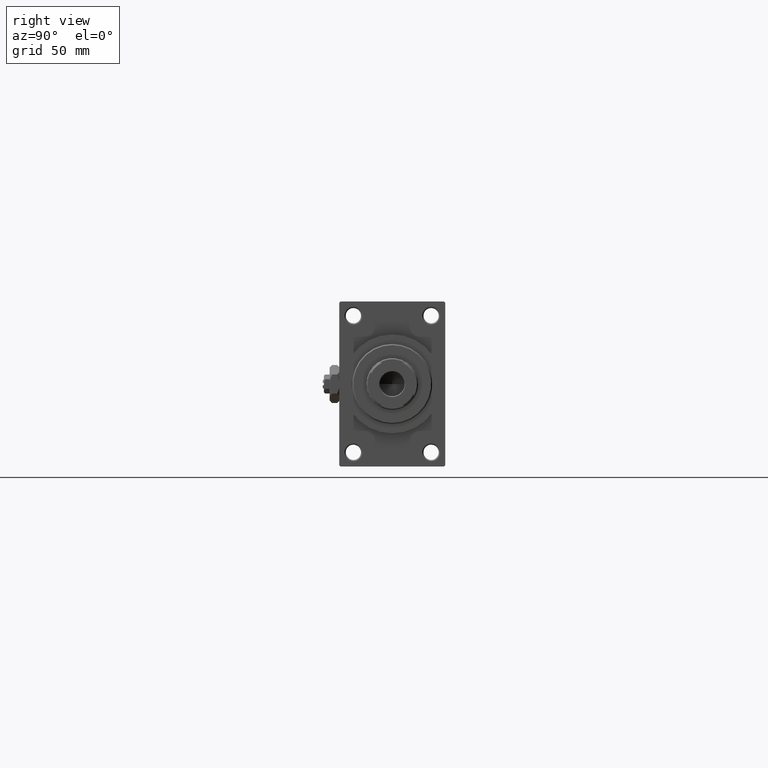
[diagram: clean part render]
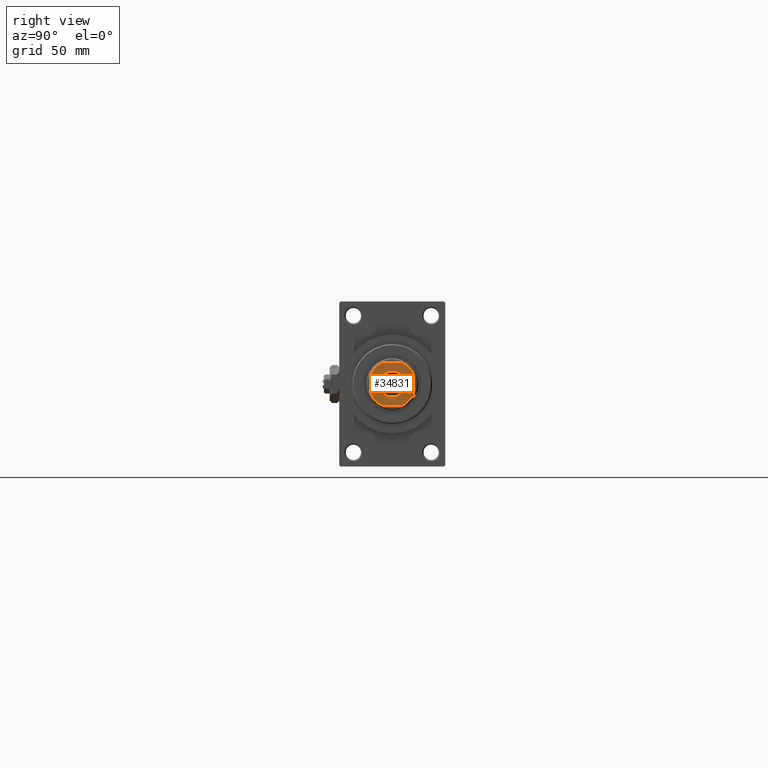
[diagram: same view with one face highlighted and labeled with its STEP entity id]
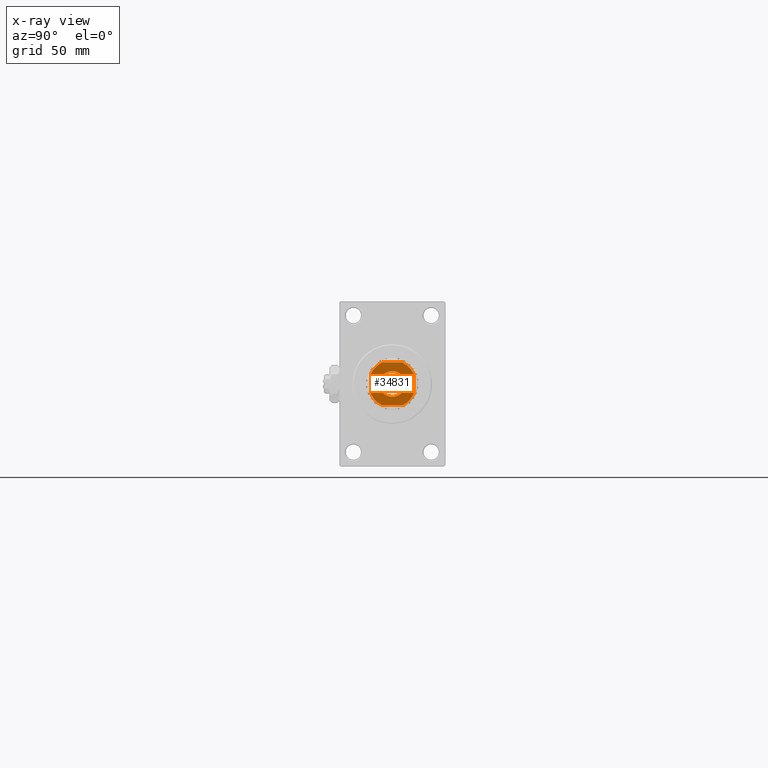
[diagram: x-ray of the same camera — body ghosted, the highlighted face saturated]
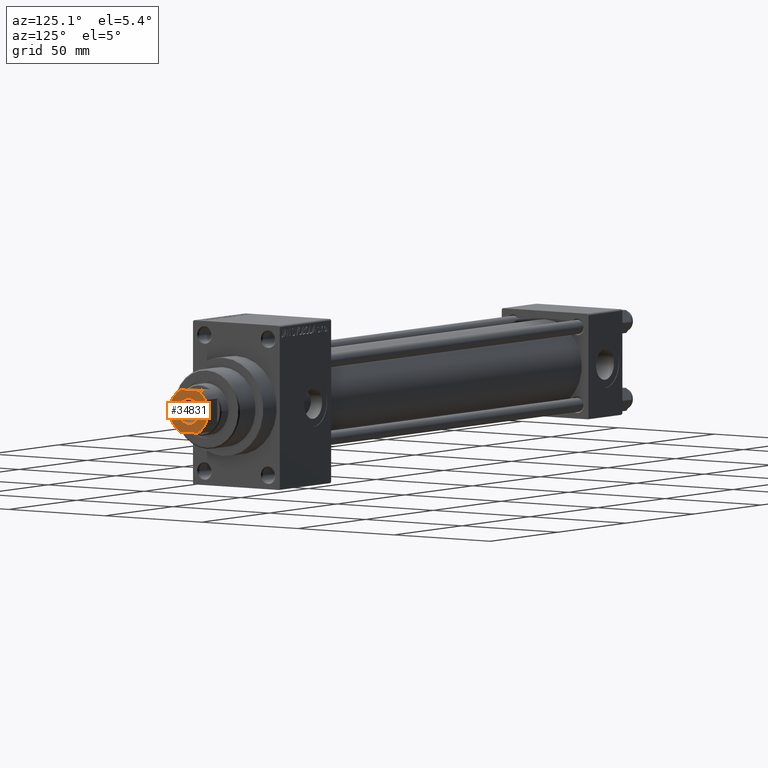
[diagram: same view with one face highlighted and labeled with its STEP entity id]
A machine part, right view. The second image highlights one B-rep face of the part: STEP entity #34831.
The next image is the same camera in x-ray: the body ghosted, the highlighted face saturated — about 0% of this face is hidden behind the body in this view.
A second angle (auxiliary view) of the same face is appended — the face is thin or edge-on in the first view.
In plain terms, the highlighted planar face has unit normal (1, 0, 0).
Its self-contained STEP definition (entity closure, byte-faithful):
#186 = LINE ( 'NONE', #30482, #36248 ) ;
#1697 = ORIENTED_EDGE ( 'NONE', *, *, #37281, .T. ) ;
#2948 = ORIENTED_EDGE ( 'NONE', *, *, #20593, .T. ) ;
#3839 = CARTESIAN_POINT ( 'NONE',  ( 0.000000000000000000, 0.000000000000000000, 263.0000000000000000 ) ) ;
#4938 = EDGE_CURVE ( 'NONE', #21318, #39023, #42260, .T. ) ;
#6105 = DIRECTION ( 'NONE',  ( 1.000000000000000000, 0.000000000000000000, 0.000000000000000000 ) ) ;
#6182 = DIRECTION ( 'NONE',  ( -0.000000000000000000, 0.000000000000000000, 1.000000000000000000 ) ) ;
#6431 = PLANE ( 'NONE',  #43890 ) ;
#6568 = DIRECTION ( 'NONE',  ( 0.000000000000000000, -0.000000000000000000, -1.000000000000000000 ) ) ;
#7846 = CARTESIAN_POINT ( 'NONE',  ( 4.358898943540551407, 8.999999999999998224, 263.0000000000000000 ) ) ;
#9156 = ORIENTED_EDGE ( 'NONE', *, *, #41198, .T. ) ;
#9356 = DIRECTION ( 'NONE',  ( 1.000000000000000000, 0.000000000000000000, 0.000000000000000000 ) ) ;
#9883 = DIRECTION ( 'NONE',  ( 9.637352644315595243E-17, -1.000000000000000000, 0.000000000000000000 ) ) ;
#10516 = AXIS2_PLACEMENT_3D ( 'NONE', #36185, #13087, #9356 ) ;
#11749 = CARTESIAN_POINT ( 'NONE',  ( 0.000000000000000000, 0.000000000000000000, 263.0000000000000000 ) ) ;
#13073 = CARTESIAN_POINT ( 'NONE',  ( 0.000000000000000000, 0.000000000000000000, 263.0000000000000000 ) ) ;
#13087 = DIRECTION ( 'NONE',  ( 0.000000000000000000, -0.000000000000000000, -1.000000000000000000 ) ) ;
#13636 = VERTEX_POINT ( 'NONE', #17674 ) ;
#14027 = ORIENTED_EDGE ( 'NONE', *, *, #4938, .T. ) ;
#14053 = DIRECTION ( 'NONE',  ( -0.000000000000000000, 0.000000000000000000, 1.000000000000000000 ) ) ;
#15474 = VECTOR ( 'NONE', #9883, 1000.000000000000000 ) ;
#15763 = CIRCLE ( 'NONE', #22089, 10.00000000000000355 ) ;
#16002 = ORIENTED_EDGE ( 'NONE', *, *, #45364, .T. ) ;
#16240 = ORIENTED_EDGE ( 'NONE', *, *, #18542, .T. ) ;
#16668 = EDGE_CURVE ( 'NONE', #35530, #27789, #33436, .T. ) ;
#17418 = ORIENTED_EDGE ( 'NONE', *, *, #42006, .T. ) ;
#17494 = CARTESIAN_POINT ( 'NONE',  ( 5.550000000000027356, 0.000000000000000000, 263.0000000000000000 ) ) ;
#17674 = CARTESIAN_POINT ( 'NONE',  ( 8.999999999999998224, 4.358898943540553184, 263.0000000000000000 ) ) ;
#17823 = LINE ( 'NONE', #37461, #15474 ) ;
#18091 = FACE_BOUND ( 'NONE', #24017, .T. ) ;
#18542 = EDGE_CURVE ( 'NONE', #45043, #13636, #186, .T. ) ;
#19477 = ORIENTED_EDGE ( 'NONE', *, *, #16668, .T. ) ;
#19653 = VECTOR ( 'NONE', #29132, 1000.000000000000000 ) ;
#20593 = EDGE_CURVE ( 'NONE', #47168, #28707, #44501, .T. ) ;
#21318 = VERTEX_POINT ( 'NONE', #17494 ) ;
#22089 = AXIS2_PLACEMENT_3D ( 'NONE', #25229, #47569, #43357 ) ;
#22991 = EDGE_LOOP ( 'NONE', ( #16240, #1697, #2948, #16002, #9156, #44614, #19477, #17418 ) ) ;
#23655 = EDGE_CURVE ( 'NONE', #28899, #35530, #15763, .T. ) ;
#24017 = EDGE_LOOP ( 'NONE', ( #14027, #27934 ) ) ;
#25012 = CARTESIAN_POINT ( 'NONE',  ( 0.000000000000000000, 0.000000000000000000, 263.0000000000000000 ) ) ;
#25229 = CARTESIAN_POINT ( 'NONE',  ( 0.000000000000000000, 0.000000000000000000, 263.0000000000000000 ) ) ;
#25937 = CIRCLE ( 'NONE', #44966, 10.00000000000000355 ) ;
#27674 = CARTESIAN_POINT ( 'NONE',  ( -4.358898943540686410, 8.999999999999998224, 263.0000000000000000 ) ) ;
#27789 = VERTEX_POINT ( 'NONE', #43264 ) ;
#27934 = ORIENTED_EDGE ( 'NONE', *, *, #32741, .T. ) ;
#28707 = VERTEX_POINT ( 'NONE', #27674 ) ;
#28804 = AXIS2_PLACEMENT_3D ( 'NONE', #3839, #6568, #41585 ) ;
#28899 = VERTEX_POINT ( 'NONE', #30852 ) ;
#28951 = CIRCLE ( 'NONE', #37683, 9.999999999999944933 ) ;
#29132 = DIRECTION ( 'NONE',  ( -1.000000000000000000, -0.000000000000000000, -0.000000000000000000 ) ) ;
#29531 = CARTESIAN_POINT ( 'NONE',  ( 0.000000000000000000, 0.000000000000000000, 263.0000000000000000 ) ) ;
#30482 = CARTESIAN_POINT ( 'NONE',  ( 8.999999999999996447, 8.999999999999998224, 263.0000000000000000 ) ) ;
#30852 = CARTESIAN_POINT ( 'NONE',  ( -9.000000000000003553, -4.358898943540677529, 263.0000000000000000 ) ) ;
#31369 = DIRECTION ( 'NONE',  ( 1.000000000000000000, 0.000000000000000000, 0.000000000000000000 ) ) ;
#31972 = CIRCLE ( 'NONE', #28804, 5.550000000000027356 ) ;
#32741 = EDGE_CURVE ( 'NONE', #39023, #21318, #31972, .T. ) ;
#33436 = LINE ( 'NONE', #37656, #43297 ) ;
#34298 = CARTESIAN_POINT ( 'NONE',  ( -5.550000000000027356, 6.796789735267843321E-16, 263.0000000000000000 ) ) ;
#34831 = ADVANCED_FACE ( 'NONE', ( #18091, #36989 ), #6431, .T. ) ;
#35206 = CARTESIAN_POINT ( 'NONE',  ( -9.000000000000003553, 4.358898943540677529, 263.0000000000000000 ) ) ;
#35530 = VERTEX_POINT ( 'NONE', #40780 ) ;
#36111 = CIRCLE ( 'NONE', #46425, 10.00000000000000355 ) ;
#36185 = CARTESIAN_POINT ( 'NONE',  ( 0.000000000000000000, 0.000000000000000000, 263.0000000000000000 ) ) ;
#36248 = VECTOR ( 'NONE', #38173, 1000.000000000000000 ) ;
#36989 = FACE_OUTER_BOUND ( 'NONE', #22991, .T. ) ;
#37281 = EDGE_CURVE ( 'NONE', #13636, #47168, #28951, .T. ) ;
#37461 = CARTESIAN_POINT ( 'NONE',  ( -9.000000000000003553, 8.999999999999998224, 263.0000000000000000 ) ) ;
#37656 = CARTESIAN_POINT ( 'NONE',  ( -9.000000000000001776, -9.000000000000001776, 263.0000000000000000 ) ) ;
#37683 = AXIS2_PLACEMENT_3D ( 'NONE', #13073, #14053, #6105 ) ;
#38173 = DIRECTION ( 'NONE',  ( -1.927470528863119049E-16, 1.000000000000000000, -0.000000000000000000 ) ) ;
#39023 = VERTEX_POINT ( 'NONE', #34298 ) ;
#40170 = DIRECTION ( 'NONE',  ( -0.000000000000000000, 0.000000000000000000, 1.000000000000000000 ) ) ;
#40411 = DIRECTION ( 'NONE',  ( 1.000000000000000000, 0.000000000000000000, 0.000000000000000000 ) ) ;
#40780 = CARTESIAN_POINT ( 'NONE',  ( -4.358898943540679305, -9.000000000000001776, 263.0000000000000000 ) ) ;
#41198 = EDGE_CURVE ( 'NONE', #48710, #28899, #17823, .T. ) ;
#41585 = DIRECTION ( 'NONE',  ( 1.000000000000000000, 0.000000000000000000, 0.000000000000000000 ) ) ;
#42006 = EDGE_CURVE ( 'NONE', #27789, #45043, #36111, .T. ) ;
#42260 = CIRCLE ( 'NONE', #10516, 5.550000000000027356 ) ;
#43264 = CARTESIAN_POINT ( 'NONE',  ( 4.358898943540679305, -9.000000000000001776, 263.0000000000000000 ) ) ;
#43297 = VECTOR ( 'NONE', #48562, 1000.000000000000000 ) ;
#43357 = DIRECTION ( 'NONE',  ( 1.000000000000000000, 0.000000000000000000, 0.000000000000000000 ) ) ;
#43890 = AXIS2_PLACEMENT_3D ( 'NONE', #29531, #6182, #47894 ) ;
#44501 = LINE ( 'NONE', #47739, #19653 ) ;
#44614 = ORIENTED_EDGE ( 'NONE', *, *, #23655, .T. ) ;
#44966 = AXIS2_PLACEMENT_3D ( 'NONE', #11749, #45774, #31369 ) ;
#45043 = VERTEX_POINT ( 'NONE', #48803 ) ;
#45364 = EDGE_CURVE ( 'NONE', #28707, #48710, #25937, .T. ) ;
#45774 = DIRECTION ( 'NONE',  ( -0.000000000000000000, 0.000000000000000000, 1.000000000000000000 ) ) ;
#46425 = AXIS2_PLACEMENT_3D ( 'NONE', #25012, #40170, #40411 ) ;
#47168 = VERTEX_POINT ( 'NONE', #7846 ) ;
#47569 = DIRECTION ( 'NONE',  ( -0.000000000000000000, 0.000000000000000000, 1.000000000000000000 ) ) ;
#47739 = CARTESIAN_POINT ( 'NONE',  ( -9.000000000000003553, 8.999999999999998224, 263.0000000000000000 ) ) ;
#47894 = DIRECTION ( 'NONE',  ( 1.000000000000000000, 0.000000000000000000, 0.000000000000000000 ) ) ;
#48562 = DIRECTION ( 'NONE',  ( 1.000000000000000000, 0.000000000000000000, 0.000000000000000000 ) ) ;
#48710 = VERTEX_POINT ( 'NONE', #35206 ) ;
#48803 = CARTESIAN_POINT ( 'NONE',  ( 8.999999999999998224, -4.358898943540684634, 263.0000000000000000 ) ) ;